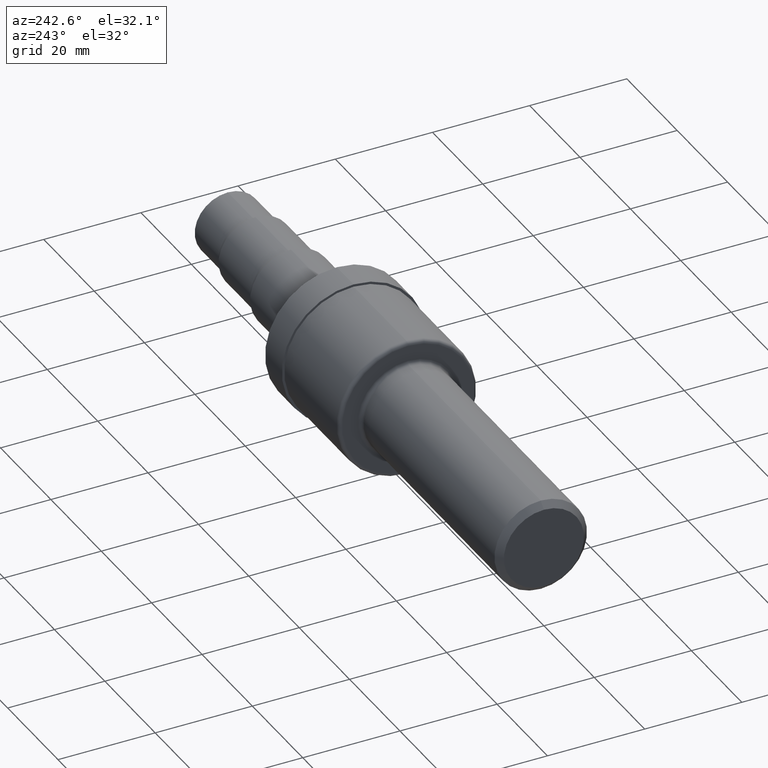
[diagram: clean part render]
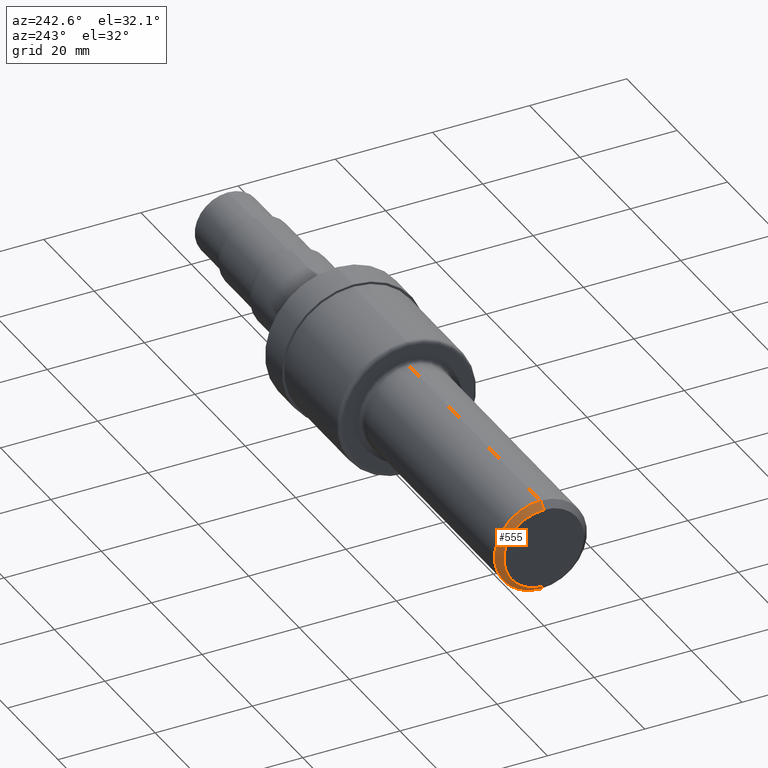
[diagram: same view with one face highlighted and labeled with its STEP entity id]
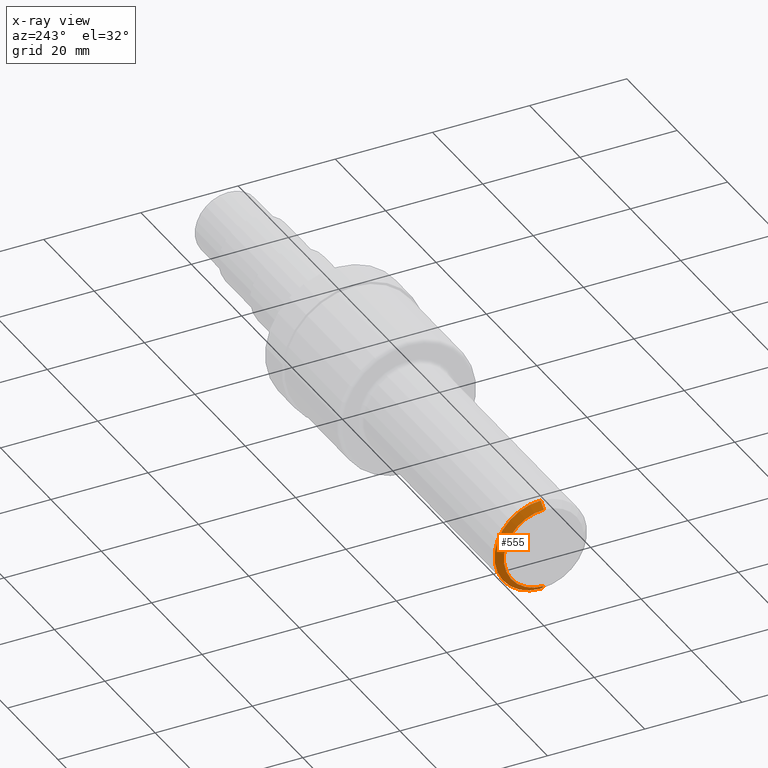
[diagram: x-ray of the same camera — body ghosted, the highlighted face saturated]
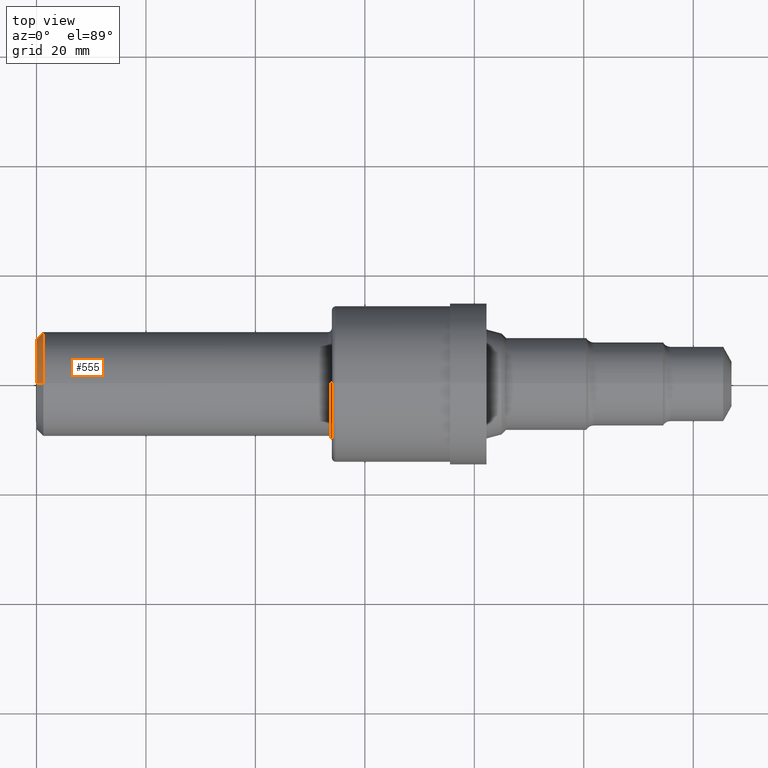
[diagram: same view with one face highlighted and labeled with its STEP entity id]
A machine part, auxiliary view. The second image highlights one B-rep face of the part: STEP entity #555.
The next image is the same camera in x-ray: the body ghosted, the highlighted face saturated — about 0% of this face is hidden behind the body in this view.
A second angle (top view) of the same face is appended — the face is thin or edge-on in the first view.
In plain terms, the highlighted conical surface has half-angle 45 deg.
Its self-contained STEP definition (entity closure, byte-faithful):
#17 = DIRECTION ( 'NONE',  ( 0.7071067811865483499, 8.659560562354922997E-17, 0.7071067811865465735 ) ) ;
#119 = DIRECTION ( 'NONE',  ( 0.0000000000000000000, 0.0000000000000000000, 1.000000000000000000 ) ) ;
#120 = DIRECTION ( 'NONE',  ( 1.000000000000000000, 0.0000000000000000000, 0.0000000000000000000 ) ) ;
#124 = CARTESIAN_POINT ( 'NONE',  ( 0.0000000000000000000, 0.0000000000000000000, 0.0000000000000000000 ) ) ;
#169 = VERTEX_POINT ( 'NONE', #191 ) ;
#174 = DIRECTION ( 'NONE',  ( 0.0000000000000000000, 0.0000000000000000000, 1.000000000000000000 ) ) ;
#191 = CARTESIAN_POINT ( 'NONE',  ( 0.05000000000000000278, 0.0000000000000000000, -0.3748500000000000165 ) ) ;
#221 = DIRECTION ( 'NONE',  ( -1.000000000000000000, -0.0000000000000000000, -0.0000000000000000000 ) ) ;
#251 = CONICAL_SURFACE ( 'NONE', #885, 0.3748500000000000165, 0.7853981633974470578 ) ;
#254 = EDGE_CURVE ( 'NONE', #276, #169, #289, .T. ) ;
#261 = CARTESIAN_POINT ( 'NONE',  ( 0.0000000000000000000, 4.284426826817016124E-17, 0.3248500000000001386 ) ) ;
#273 = ORIENTED_EDGE ( 'NONE', *, *, #254, .T. ) ;
#274 = FACE_OUTER_BOUND ( 'NONE', #920, .T. ) ;
#276 = VERTEX_POINT ( 'NONE', #694 ) ;
#289 = CIRCLE ( 'NONE', #735, 0.3748500000000000165 ) ;
#318 = AXIS2_PLACEMENT_3D ( 'NONE', #124, #512, #119 ) ;
#361 = EDGE_CURVE ( 'NONE', #462, #667, #389, .T. ) ;
#367 = ORIENTED_EDGE ( 'NONE', *, *, #645, .F. ) ;
#369 = LINE ( 'NONE', #783, #771 ) ;
#389 = CIRCLE ( 'NONE', #318, 0.3248500000000001386 ) ;
#460 = EDGE_CURVE ( 'NONE', #462, #276, #900, .T. ) ;
#462 = VERTEX_POINT ( 'NONE', #261 ) ;
#512 = DIRECTION ( 'NONE',  ( -1.000000000000000000, -0.0000000000000000000, -0.0000000000000000000 ) ) ;
#548 = DIRECTION ( 'NONE',  ( 0.0000000000000000000, 0.0000000000000000000, -1.000000000000000000 ) ) ;
#555 = ADVANCED_FACE ( 'NONE', ( #274 ), #251, .T. ) ;
#645 = EDGE_CURVE ( 'NONE', #667, #169, #369, .T. ) ;
#667 = VERTEX_POINT ( 'NONE', #922 ) ;
#694 = CARTESIAN_POINT ( 'NONE',  ( 0.05000000000000000278, 4.590588526603853748E-17, 0.3748500000000000165 ) ) ;
#705 = VECTOR ( 'NONE', #17, 39.37007874015748854 ) ;
#710 = CARTESIAN_POINT ( 'NONE',  ( 0.05000000000000000278, 0.0000000000000000000, 0.0000000000000000000 ) ) ;
#735 = AXIS2_PLACEMENT_3D ( 'NONE', #710, #221, #174 ) ;
#771 = VECTOR ( 'NONE', #891, 39.37007874015748854 ) ;
#783 = CARTESIAN_POINT ( 'NONE',  ( 0.05000000000000000278, 0.0000000000000000000, -0.3748500000000000165 ) ) ;
#793 = ORIENTED_EDGE ( 'NONE', *, *, #460, .T. ) ;
#858 = ORIENTED_EDGE ( 'NONE', *, *, #361, .F. ) ;
#868 = CARTESIAN_POINT ( 'NONE',  ( 0.05000000000000000278, 4.590588526603853748E-17, 0.3748500000000000165 ) ) ;
#885 = AXIS2_PLACEMENT_3D ( 'NONE', #917, #120, #548 ) ;
#891 = DIRECTION ( 'NONE',  ( 0.7071067811865483499, 0.0000000000000000000, -0.7071067811865465735 ) ) ;
#900 = LINE ( 'NONE', #868, #705 ) ;
#917 = CARTESIAN_POINT ( 'NONE',  ( 0.05000000000000000278, 0.0000000000000000000, 0.0000000000000000000 ) ) ;
#920 = EDGE_LOOP ( 'NONE', ( #858, #793, #273, #367 ) ) ;
#922 = CARTESIAN_POINT ( 'NONE',  ( 0.0000000000000000000, 0.0000000000000000000, -0.3248500000000001386 ) ) ;